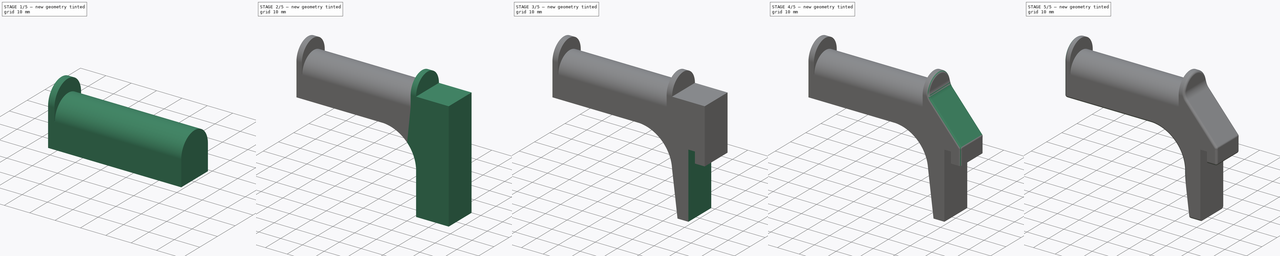
[diagram: build sequence overview — one tinted view per stage of 5, left to right]
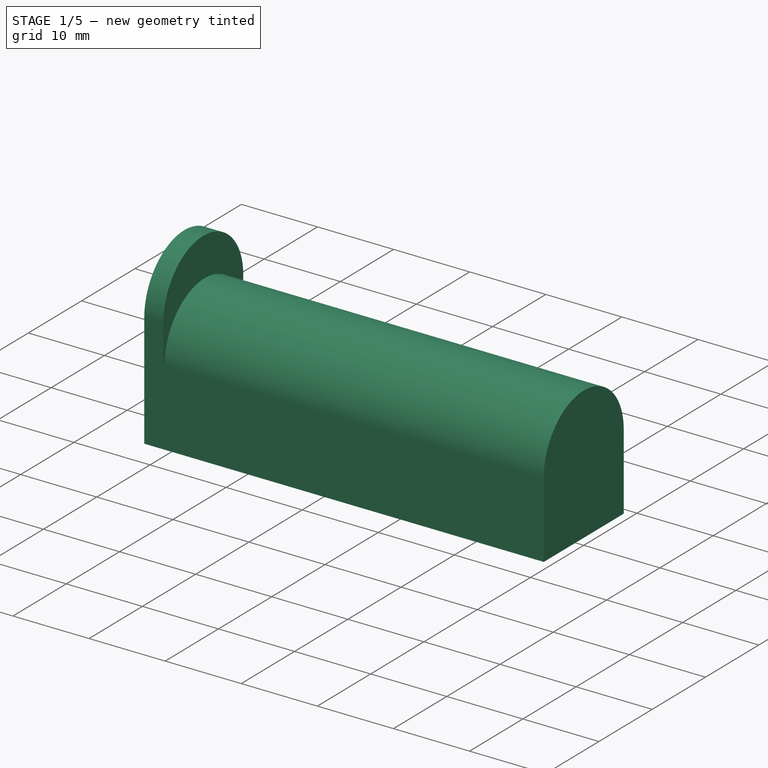
[diagram: stage 1 of 5 — iso view after this stage's code; geometry added in this stage tinted green]
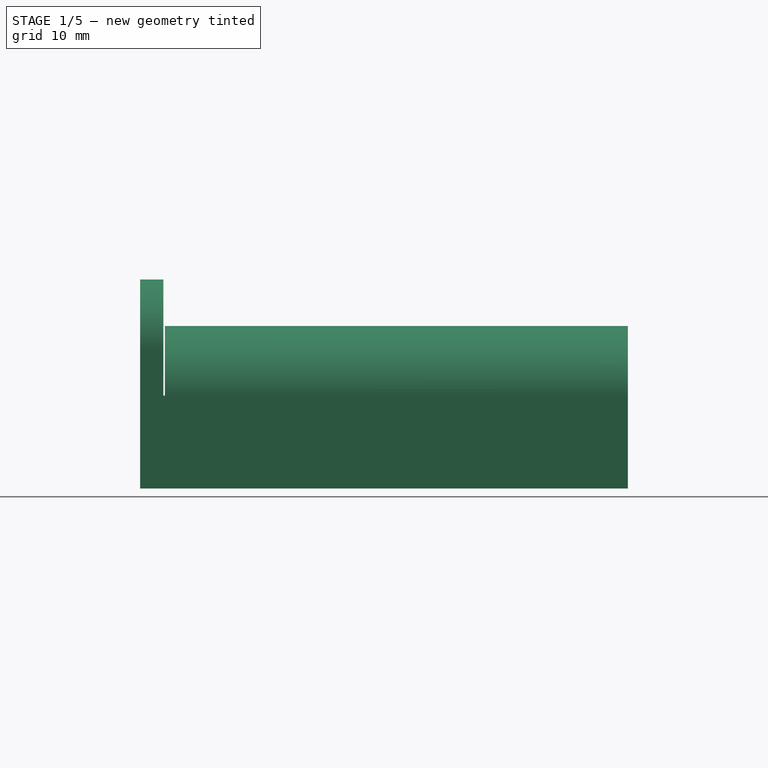
[diagram: stage 1 of 5 — front view after this stage's code; geometry added in this stage tinted green]
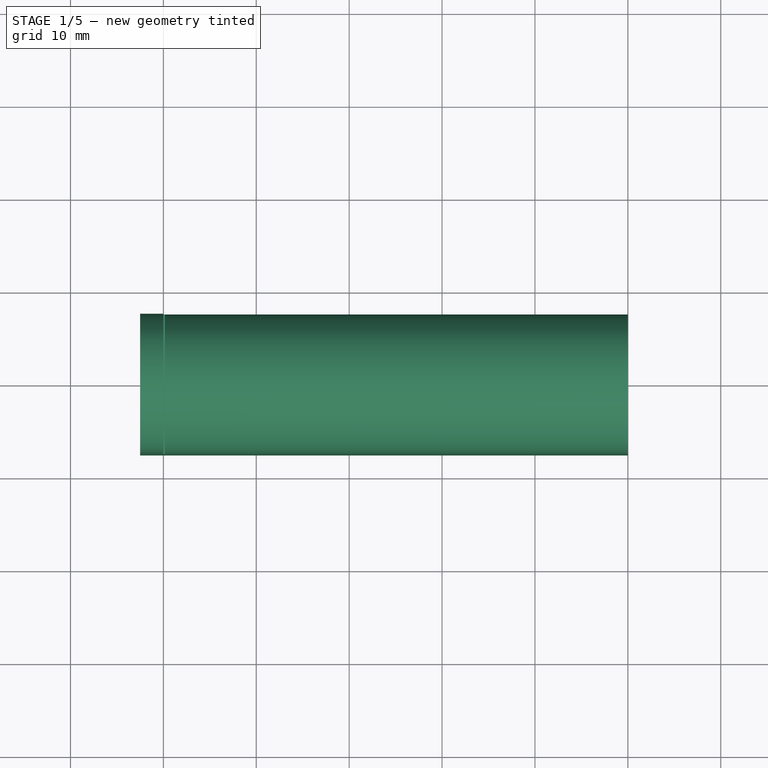
[diagram: stage 1 of 5 — top view after this stage's code; geometry added in this stage tinted green]
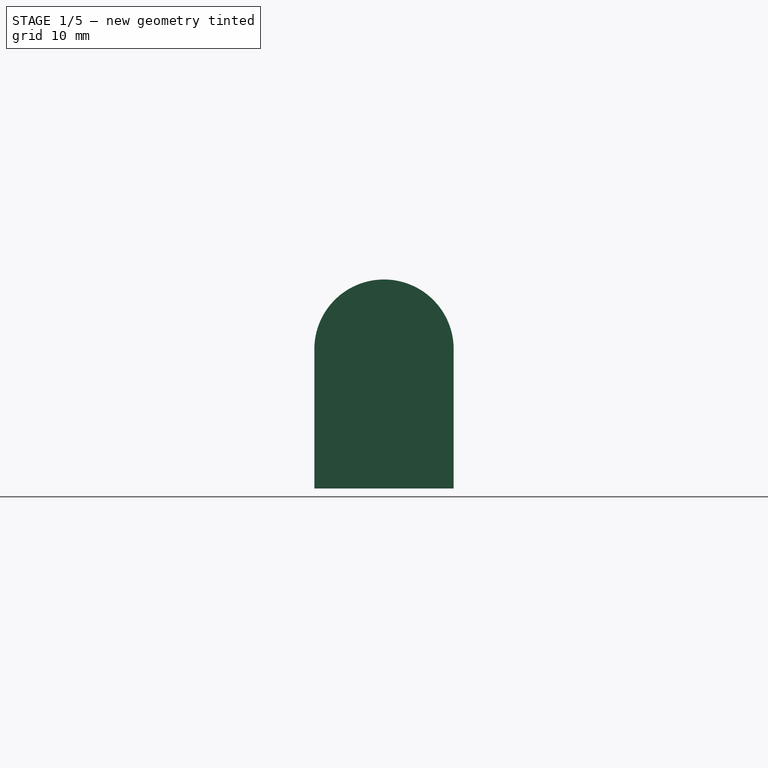
[diagram: stage 1 of 5 — right view after this stage's code; geometry added in this stage tinted green]
FCSTD DOCUMENT  (FreeCAD 0.15R4671 (Git))
Label: spool_holder
License: All rights reserved
LicenseURL: http://en.wikipedia.org/wiki/All_rights_reserved
objects: Sketcher::SketchObject×12, PartDesign::Pad×5, Part::Fillet×5, PartDesign::Pocket×4, PartDesign::Revolution×3, PartDesign::Fillet×2
note: 43 computed .brp shape members not serialized (recipe doc carries the construction recipe); baked Part::Feature solids carry a one-line shape summary decoded from their .brp

FEATURE [Sketcher::SketchObject] Sketch
  sketch-geometry (4):
    g0: LineSegment StartX=0 StartY=0 StartZ=0 EndX=-49.8359 EndY=0 EndZ=0
    g1: LineSegment StartX=-49.8359 StartY=0 StartZ=0 EndX=-49.8359 EndY=7.5 EndZ=0
    g2: LineSegment StartX=-49.8359 StartY=7.5 StartZ=0 EndX=0 EndY=7.5 EndZ=0
    g3: LineSegment StartX=0 StartY=7.5 StartZ=0 EndX=0 EndY=0 EndZ=0
  constraints (8):
    c: Coincident(g0,g1)
    c: Coincident(g1,g2)
    c: Coincident(g2,g3)
    c: Coincident(g3,g0)
    c: Horizontal(g0)
    c: Horizontal(g2)
    c: Vertical(g1)
    c: Vertical(g3)
FEATURE [PartDesign::Revolution] Revolution
  Angle = 180
  Axis = (1,0,0)
  Base = (0,0,0)
  ReferenceAxis = -> Sketch [H_Axis]
  Sketch = -> Sketch
FEATURE [Sketcher::SketchObject] Sketch001
  Placement = pos=(0,0,0) rot=(1,0,0;3.14159rad)
  Support = -> Revolution [Face4]
  sketch-geometry (4):
    g0: LineSegment StartX=0 StartY=7.5 StartZ=0 EndX=-50 EndY=7.5 EndZ=0
    g1: LineSegment StartX=-50 StartY=7.5 StartZ=0 EndX=-50 EndY=-7.5 EndZ=0
    g2: LineSegment StartX=-50 StartY=-7.5 StartZ=0 EndX=0 EndY=-7.5 EndZ=0
    g3: LineSegment StartX=0 StartY=-7.5 StartZ=0 EndX=0 EndY=7.5 EndZ=0
  constraints (9):
    c: Coincident(g0,g1)
    c: Coincident(g1,g2)
    c: Coincident(g2,g3)
    c: Coincident(g3,g0)
    c: Horizontal(g0)
    c: Horizontal(g2)
    c: Vertical(g1)
    c: Vertical(g3)
    c: PointOnObject(g0,g-2)
FEATURE [PartDesign::Pad] Pad
  Length = 10
  Length2 = 100
  Sketch = -> Sketch001
  Type = 0
FEATURE [Sketcher::SketchObject] Sketch002
  Placement = pos=(-50,0,0) rot=(0.57735,-0.57735,-0.57735;2.0944rad)
  Support = -> Pad [Face3]
  sketch-geometry (4):
    g0: LineSegment StartX=-7.5 StartY=5 StartZ=0 EndX=7.5 EndY=5 EndZ=0
    g1: LineSegment StartX=7.5 StartY=5 StartZ=0 EndX=7.5 EndY=-10 EndZ=0
    g2: LineSegment StartX=7.5 StartY=-10 StartZ=0 EndX=-7.5 EndY=-10 EndZ=0
    g3: LineSegment StartX=-7.5 StartY=-10 StartZ=0 EndX=-7.5 EndY=5 EndZ=0
  constraints (8):
    c: Coincident(g0,g1)
    c: Coincident(g1,g2)
    c: Coincident(g2,g3)
    c: Coincident(g3,g0)
    c: Horizontal(g0)
    c: Horizontal(g2)
    c: Vertical(g1)
    c: Vertical(g3)
FEATURE [PartDesign::Pad] Pad001
  Length = 2.5
  Length2 = 100
  Sketch = -> Sketch002
  Type = 0
FEATURE [Sketcher::SketchObject] Sketch003
  Placement = pos=(0,0,5) rot=(0,0,1;0rad)
  Support = -> Pad001 [Face6]
  sketch-geometry (4):
    g0: LineSegment StartX=-50 StartY=7.5 StartZ=0 EndX=-52.5 EndY=7.5 EndZ=0
    g1: LineSegment StartX=-52.5 StartY=7.5 StartZ=0 EndX=-52.5 EndY=0 EndZ=0
    g2: LineSegment StartX=-52.5 StartY=0 StartZ=0 EndX=-50 EndY=0 EndZ=0
    g3: LineSegment StartX=-50 StartY=0 StartZ=0 EndX=-50 EndY=7.5 EndZ=0
  constraints (8):
    c: Coincident(g0,g1)
    c: Coincident(g1,g2)
    c: Coincident(g2,g3)
    c: Coincident(g3,g0)
    c: Horizontal(g0)
    c: Horizontal(g2)
    c: Vertical(g1)
    c: Vertical(g3)
FEATURE [PartDesign::Revolution] Revolution001
  Angle = 180
  Axis = (1,0,0)
  Base = (0,0,5)
  ReferenceAxis = -> Sketch003 [H_Axis]
  Sketch = -> Sketch003
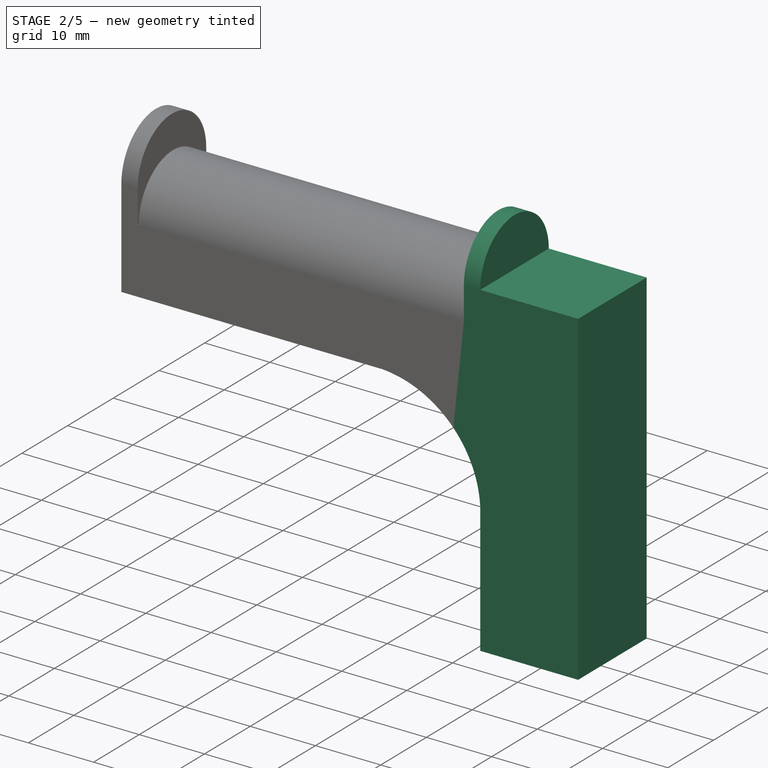
[diagram: stage 2 of 5 — iso view after this stage's code; geometry added in this stage tinted green]
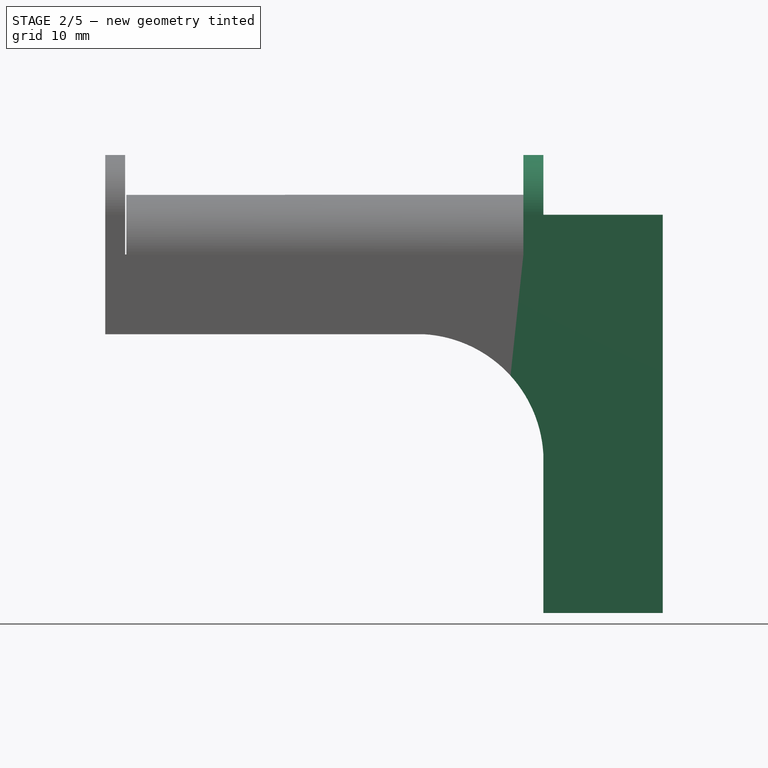
[diagram: stage 2 of 5 — front view after this stage's code; geometry added in this stage tinted green]
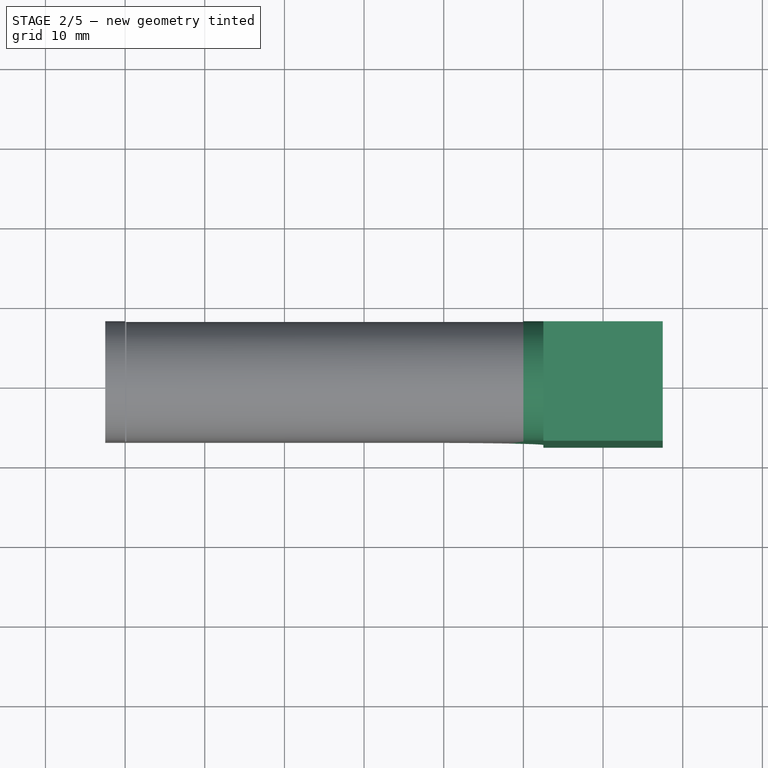
[diagram: stage 2 of 5 — top view after this stage's code; geometry added in this stage tinted green]
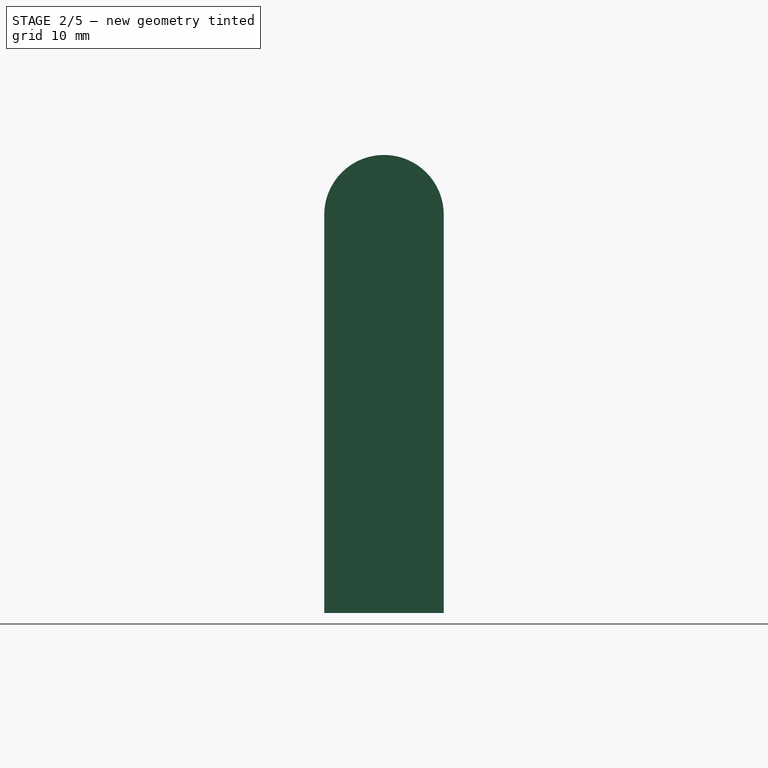
[diagram: stage 2 of 5 — right view after this stage's code; geometry added in this stage tinted green]
FEATURE [Sketcher::SketchObject] Sketch004
  Placement = pos=(0,0,0) rot=(0.57735,0.57735,0.57735;2.0944rad)
  Support = -> Revolution001 [Face1]
  sketch-geometry (4):
    g0: LineSegment StartX=-7.5 StartY=5 StartZ=0 EndX=7.5 EndY=5 EndZ=0
    g1: LineSegment StartX=7.5 StartY=5 StartZ=0 EndX=7.5 EndY=-10 EndZ=0
    g2: LineSegment StartX=7.5 StartY=-10 StartZ=0 EndX=-7.5 EndY=-10 EndZ=0
    g3: LineSegment StartX=-7.5 StartY=-10 StartZ=0 EndX=-7.5 EndY=5 EndZ=0
  constraints (8):
    c: Coincident(g0,g1)
    c: Coincident(g1,g2)
    c: Coincident(g2,g3)
    c: Coincident(g3,g0)
    c: Horizontal(g0)
    c: Horizontal(g2)
    c: Vertical(g1)
    c: Vertical(g3)
FEATURE [PartDesign::Pad] Pad002
  Length = 2.5
  Length2 = 100
  Sketch = -> Sketch004
  Type = 0
FEATURE [Sketcher::SketchObject] Sketch005
  Placement = pos=(0,0,5) rot=(0,0,1;0rad)
  Support = -> Pad002 [Face2]
  sketch-geometry (4):
    g0: LineSegment StartX=0 StartY=7.5 StartZ=0 EndX=2.5 EndY=7.5 EndZ=0
    g1: LineSegment StartX=2.5 StartY=7.5 StartZ=0 EndX=2.5 EndY=0 EndZ=0
    g2: LineSegment StartX=2.5 StartY=0 StartZ=0 EndX=0 EndY=0 EndZ=0
    g3: LineSegment StartX=0 StartY=0 StartZ=0 EndX=0 EndY=7.5 EndZ=0
  constraints (10):
    c: Coincident(g0,g1)
    c: Coincident(g1,g2)
    c: Coincident(g2,g3)
    c: Coincident(g3,g0)
    c: Horizontal(g0)
    c: Horizontal(g2)
    c: Vertical(g1)
    c: Vertical(g3)
    c: PointOnObject(g0,g-2)
    c: PointOnObject(g1,g-1)
FEATURE [PartDesign::Revolution] Revolution002
  Angle = 180
  Axis = (1,0,0)
  Base = (0,0,5)
  ReferenceAxis = -> Sketch005 [H_Axis]
  Sketch = -> Sketch005
FEATURE [Sketcher::SketchObject] Sketch006
  Placement = pos=(2.5,0,0) rot=(0.57735,0.57735,0.57735;2.0944rad)
  Support = -> Revolution002 [Face11]
  sketch-geometry (4):
    g0: LineSegment StartX=-7.5 StartY=5 StartZ=0 EndX=7.5 EndY=5 EndZ=0
    g1: LineSegment StartX=7.5 StartY=5 StartZ=0 EndX=7.5 EndY=-45 EndZ=0
    g2: LineSegment StartX=7.5 StartY=-45 StartZ=0 EndX=-7.5 EndY=-45 EndZ=0
    g3: LineSegment StartX=-7.5 StartY=-45 StartZ=0 EndX=-7.5 EndY=5 EndZ=0
  constraints (8):
    c: Coincident(g0,g1)
    c: Coincident(g1,g2)
    c: Coincident(g2,g3)
    c: Coincident(g3,g0)
    c: Horizontal(g0)
    c: Horizontal(g2)
    c: Vertical(g1)
    c: Vertical(g3)
FEATURE [PartDesign::Pad] Pad003
  Length = 15
  Length2 = 100
  Sketch = -> Sketch006
  Type = 0
FEATURE [Sketcher::SketchObject] Sketch007
  Placement = pos=(0,-7.5,0) rot=(1,0,0;1.5708rad)
  Support = -> Pad003 [Face16]
  sketch-geometry (3):
    g0: ArcOfCircle CenterX=-13.4385 CenterY=-25.9391 CenterZ=0 NormalX=0 NormalY=0 NormalZ=1 Radius=15.967 StartAngle=0.0598202 EndAngle=1.51167
    g1: LineSegment StartX=2.5 StartY=-24.9846 StartZ=0 EndX=2.5 EndY=-10 EndZ=0
    g2: LineSegment StartX=2.5 StartY=-10 StartZ=0 EndX=-12.495 EndY=-10 EndZ=0
  constraints (5):
    c: Vertical(g1)
    c: Coincident(g1,g2)
    c: Horizontal(g2)
    c: Coincident(g0,g1)
    c: Coincident(g0,g2)
FEATURE [PartDesign::Pad] Pad004
  Length = 15
  Length2 = 100
  Reversed = true
  Sketch = -> Sketch007
  Type = 0
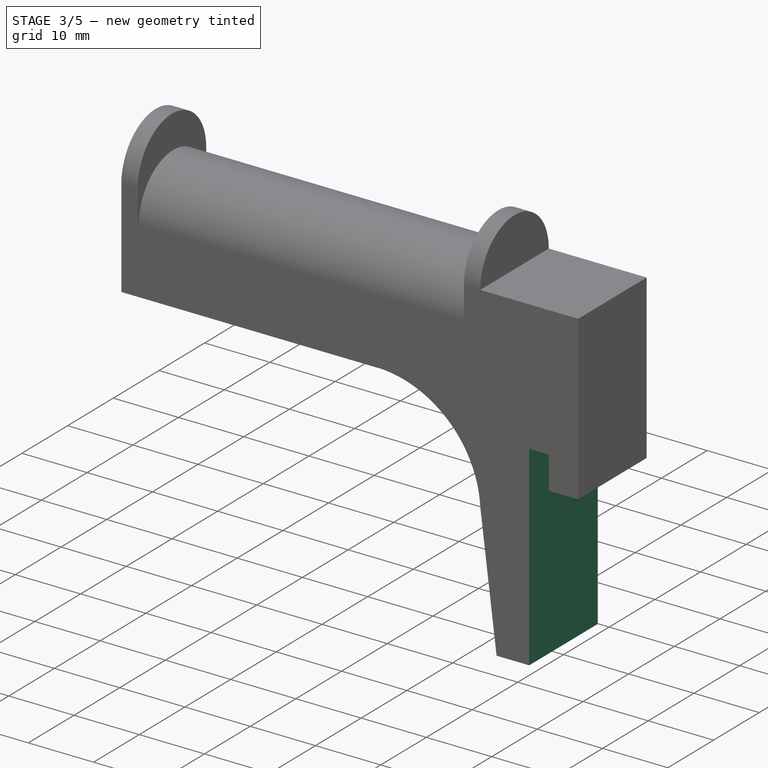
[diagram: stage 3 of 5 — iso view after this stage's code; geometry added in this stage tinted green]
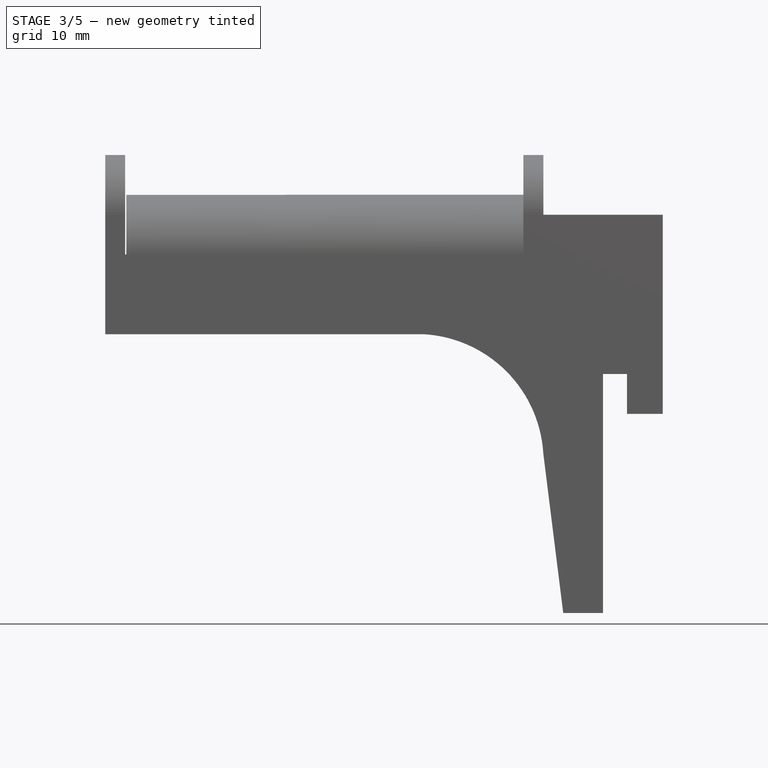
[diagram: stage 3 of 5 — front view after this stage's code; geometry added in this stage tinted green]
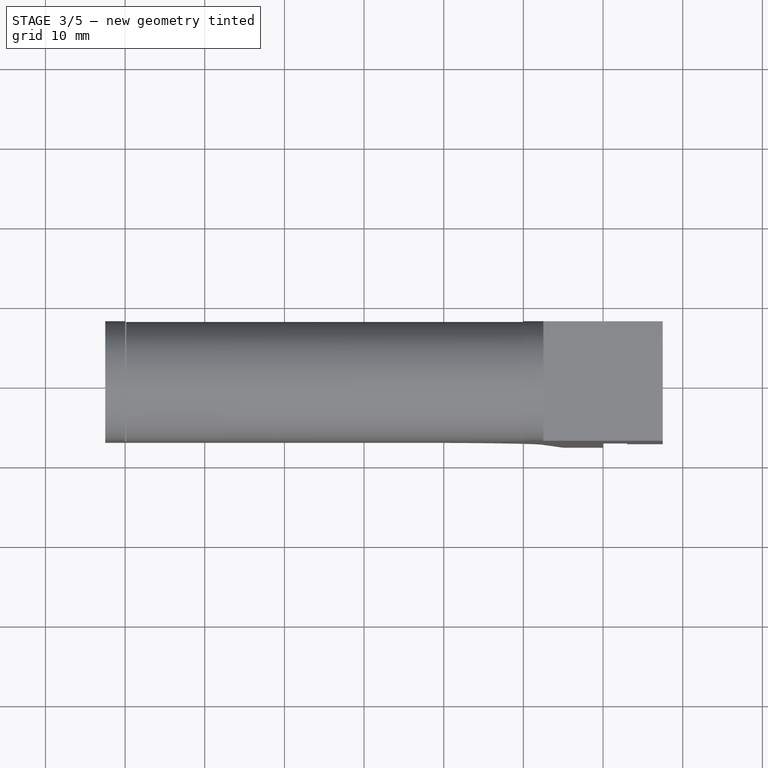
[diagram: stage 3 of 5 — top view after this stage's code; geometry added in this stage tinted green]
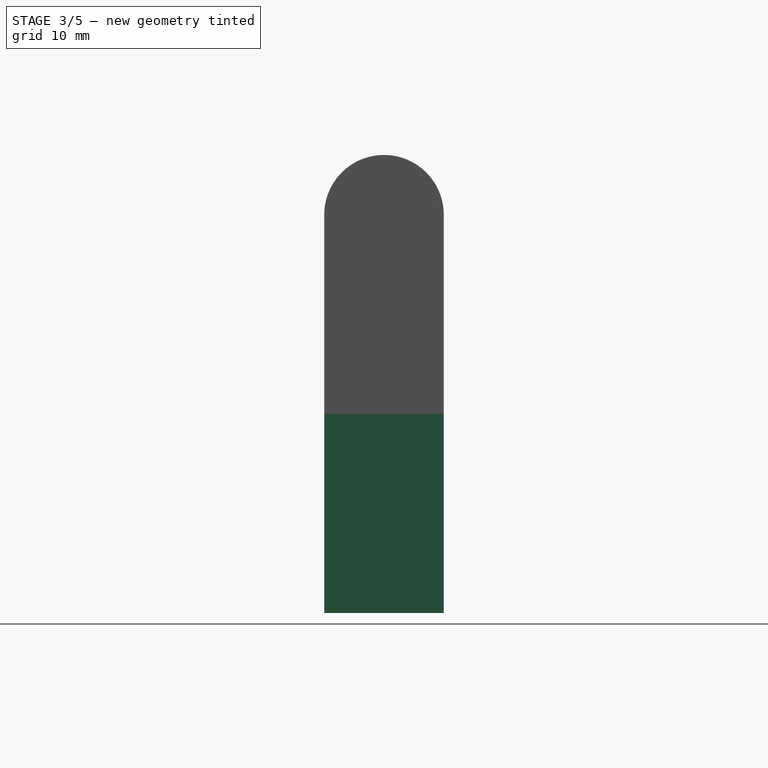
[diagram: stage 3 of 5 — right view after this stage's code; geometry added in this stage tinted green]
FEATURE [Sketcher::SketchObject] Sketch008
  Placement = pos=(0,-7.5,0) rot=(1,0,0;1.5708rad)
  Support = -> Pad004 [Face17]
  sketch-geometry (4):
    g0: LineSegment StartX=10 StartY=-45 StartZ=0 EndX=17.5 EndY=-45 EndZ=0
    g1: LineSegment StartX=17.5 StartY=-45 StartZ=0 EndX=17.5 EndY=-20 EndZ=0
    g2: LineSegment StartX=17.5 StartY=-20 StartZ=0 EndX=10 EndY=-20 EndZ=0
    g3: LineSegment StartX=10 StartY=-20 StartZ=0 EndX=10 EndY=-45 EndZ=0
  constraints (8):
    c: Coincident(g0,g1)
    c: Coincident(g1,g2)
    c: Coincident(g2,g3)
    c: Coincident(g3,g0)
    c: Horizontal(g0)
    c: Horizontal(g2)
    c: Vertical(g1)
    c: Vertical(g3)
FEATURE [PartDesign::Pocket] Pocket
  Length = 15
  Sketch = -> Sketch008
  Type = 0
FEATURE [Sketcher::SketchObject] Sketch009
  Placement = pos=(0,-7.5,0) rot=(1,0,0;1.5708rad)
  Support = -> Pocket [Face5]
  sketch-geometry (4):
    g0: LineSegment StartX=2.5 StartY=-25 StartZ=0 EndX=5 EndY=-45 EndZ=0
    g1: LineSegment StartX=5 StartY=-45 StartZ=0 EndX=0 EndY=-45 EndZ=0
    g2: LineSegment StartX=0 StartY=-45 StartZ=0 EndX=0 EndY=-25 EndZ=0
    g3: LineSegment StartX=0 StartY=-25 StartZ=0 EndX=2.5 EndY=-25 EndZ=0
  constraints (8):
    c: Coincident(g0,g1)
    c: Horizontal(g1)
    c: Coincident(g1,g2)
    c: PointOnObject(g2,g-2)
    c: Vertical(g2)
    c: Coincident(g2,g3)
    c: Coincident(g3,g0)
    c: Horizontal(g3)
FEATURE [PartDesign::Pocket] Pocket001
  Length = 15
  Sketch = -> Sketch009
  Type = 0
FEATURE [Sketcher::SketchObject] Sketch010
  Placement = pos=(0,-7.5,0) rot=(1,0,0;1.5708rad)
  Support = -> Pocket001 [Face5]
  sketch-geometry (4):
    g0: LineSegment StartX=10 StartY=-20 StartZ=0 EndX=13 EndY=-20 EndZ=0
    g1: LineSegment StartX=13 StartY=-20 StartZ=0 EndX=13 EndY=-15 EndZ=0
    g2: LineSegment StartX=13 StartY=-15 StartZ=0 EndX=10 EndY=-15 EndZ=0
    g3: LineSegment StartX=10 StartY=-15 StartZ=0 EndX=10 EndY=-20 EndZ=0
  constraints (8):
    c: Coincident(g0,g1)
    c: Coincident(g1,g2)
    c: Coincident(g2,g3)
    c: Coincident(g3,g0)
    c: Horizontal(g0)
    c: Horizontal(g2)
    c: Vertical(g1)
    c: Vertical(g3)
FEATURE [PartDesign::Pocket] Pocket002
  Length = 15
  Sketch = -> Sketch010
  Type = 0
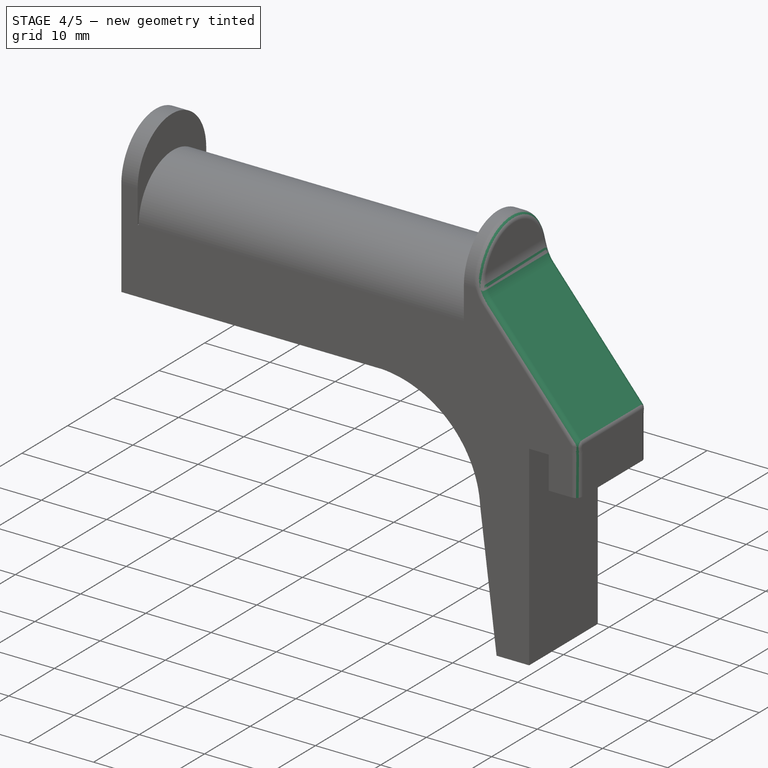
[diagram: stage 4 of 5 — iso view after this stage's code; geometry added in this stage tinted green]
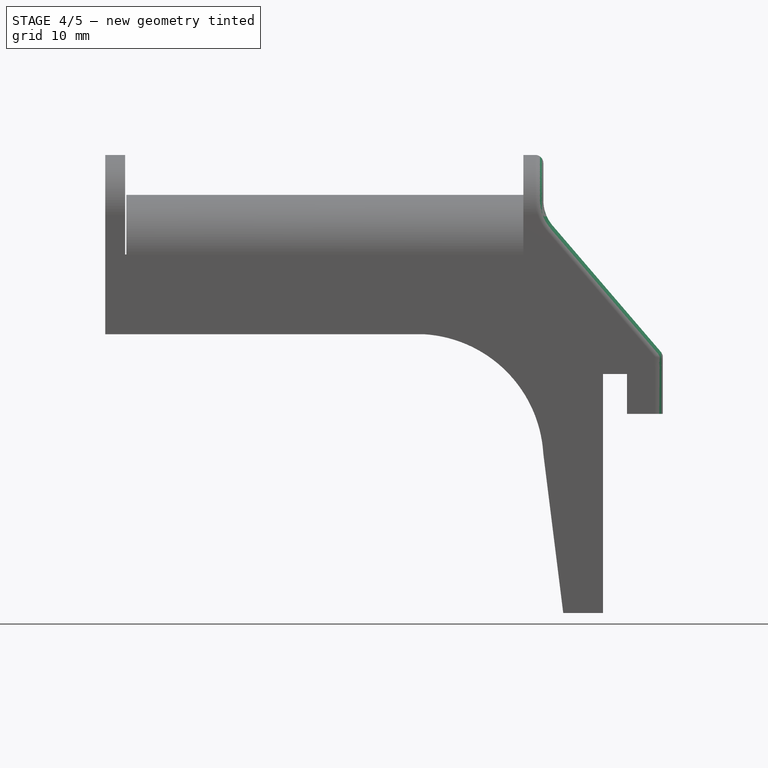
[diagram: stage 4 of 5 — front view after this stage's code; geometry added in this stage tinted green]
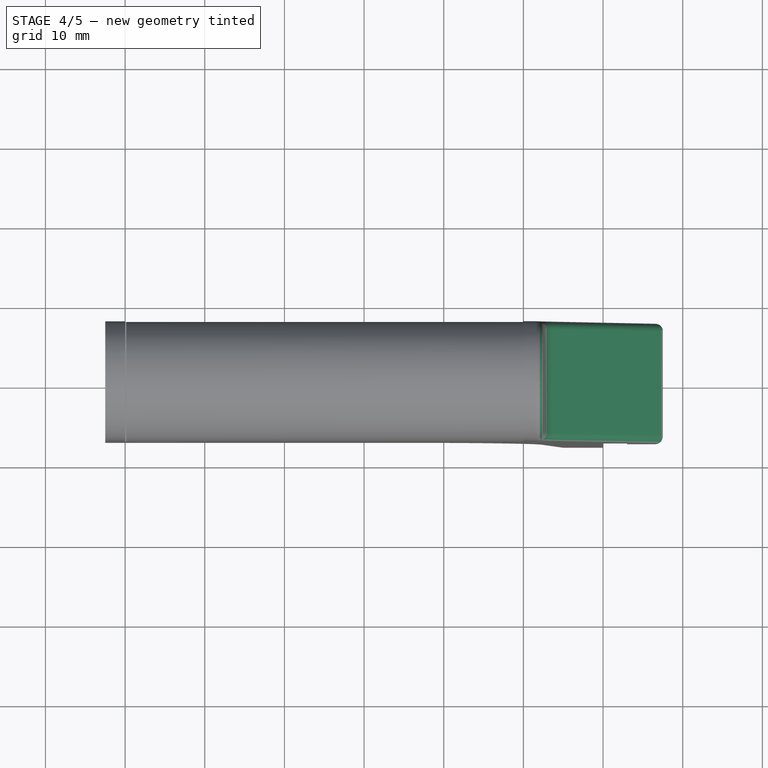
[diagram: stage 4 of 5 — top view after this stage's code; geometry added in this stage tinted green]
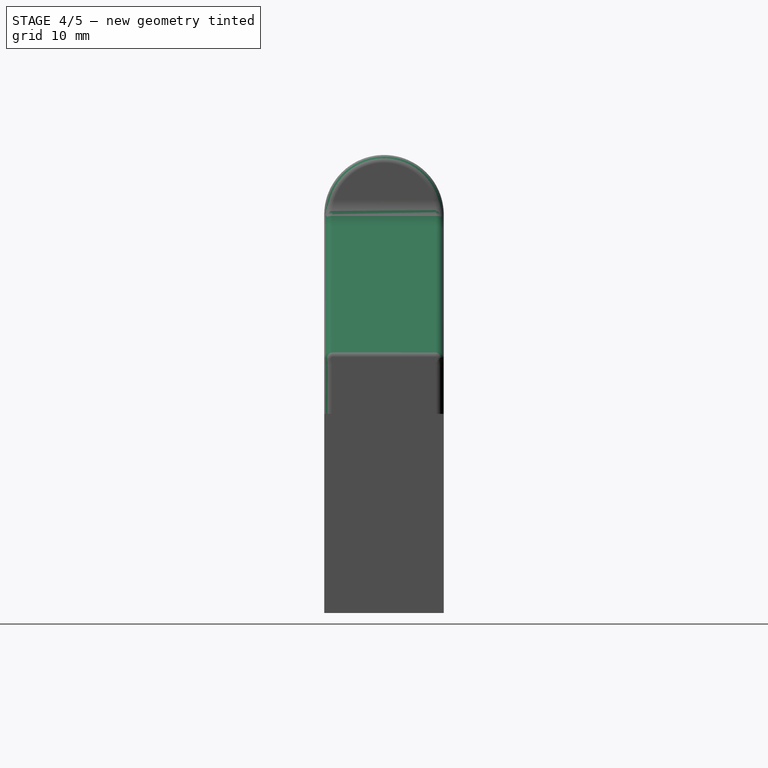
[diagram: stage 4 of 5 — right view after this stage's code; geometry added in this stage tinted green]
FEATURE [Sketcher::SketchObject] Sketch011
  Placement = pos=(0,-7.5,0) rot=(1,0,0;1.5708rad)
  Support = -> Pocket002 [Face5]
  sketch-geometry (3):
    g0: LineSegment StartX=3 StartY=1.25221 StartZ=0 EndX=17.5 EndY=-12.5 EndZ=0
    g1: LineSegment StartX=17.5 StartY=-12.5 StartZ=0 EndX=17.5 EndY=1.25221 EndZ=0
    g2: LineSegment StartX=17.5 StartY=1.25221 StartZ=0 EndX=3 EndY=1.25221 EndZ=0
  constraints (5):
    c: Coincident(g1,g0)
    c: Vertical(g1)
    c: Coincident(g2,g0)
    c: Horizontal(g2)
    c: Coincident(g1,g2)
FEATURE [PartDesign::Pocket] Pocket003
  Length = 15
  Sketch = -> Sketch011
  Type = 0
FEATURE [PartDesign::Fillet] Fillet
  Base = -> Pocket003 [Edge5]
  Radius = 5
FEATURE [PartDesign::Fillet] Fillet001
  Base = -> Fillet [Edge50]
  Radius = 1
FEATURE [Part::Fillet] Fillet002
  Base = -> Fillet001
  Edges = 5 edges r=1: [Edge4,Edge12,Edge13,Edge16,Edge17]
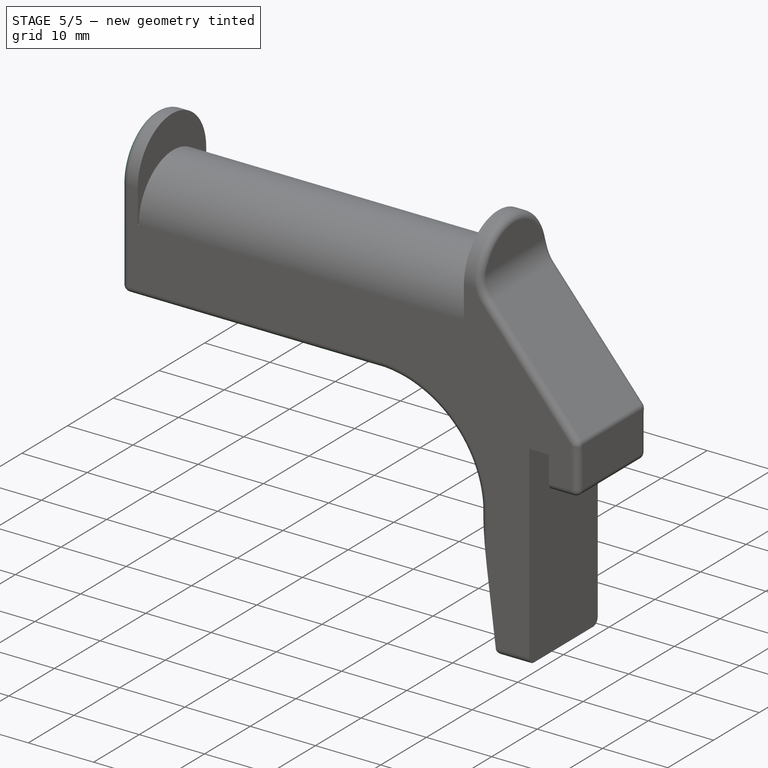
[diagram: stage 5 of 5 — iso view after this stage's code; geometry added in this stage tinted green]
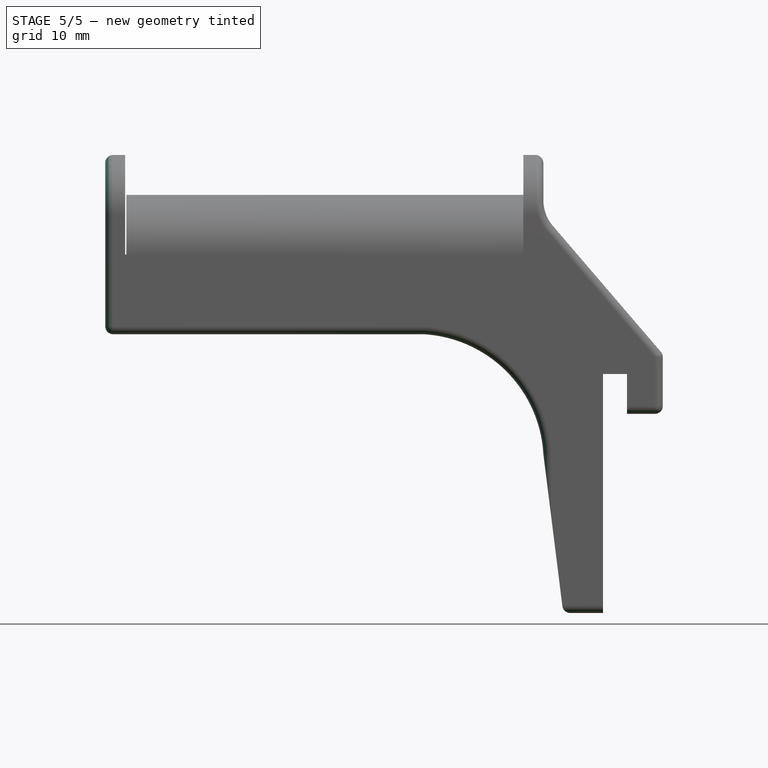
[diagram: stage 5 of 5 — front view after this stage's code; geometry added in this stage tinted green]
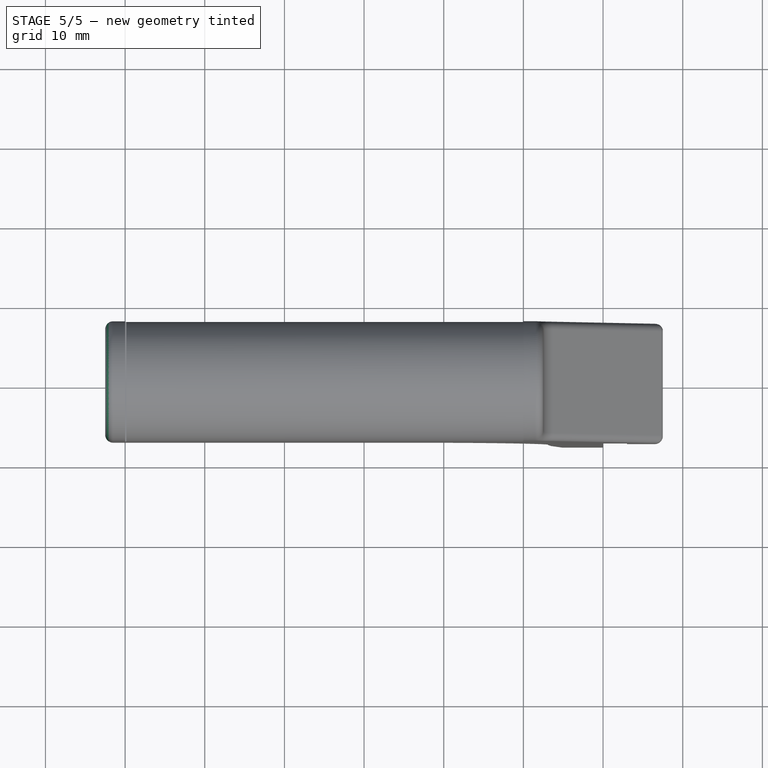
[diagram: stage 5 of 5 — top view after this stage's code; geometry added in this stage tinted green]
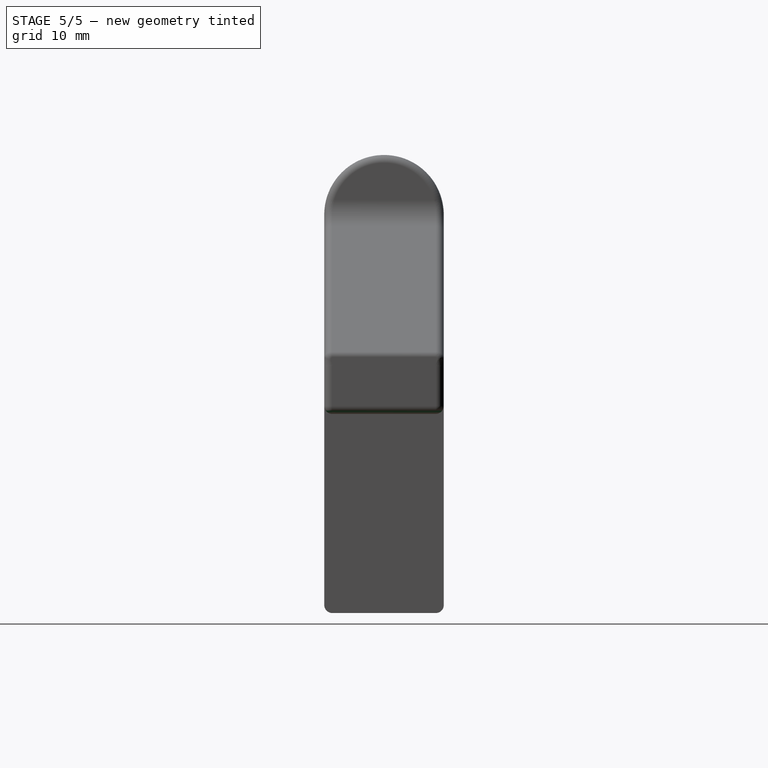
[diagram: stage 5 of 5 — right view after this stage's code; geometry added in this stage tinted green]
FEATURE [Part::Fillet] Fillet003
  Base = -> Fillet002
  Edges = 1 edges r=1: [Edge43]
FEATURE [Part::Fillet] Fillet004
  Base = -> Fillet003
  Edges = 1 edges r=1: [Edge21]
FEATURE [Part::Fillet] Fillet005
  Base = -> Fillet004
  Edges = 3 edges r=1: [Edge14,Edge55,Edge60]
FEATURE [Part::Fillet] Fillet006
  Base = -> Fillet005
  Edges = 1 edges r=1: [Edge41]
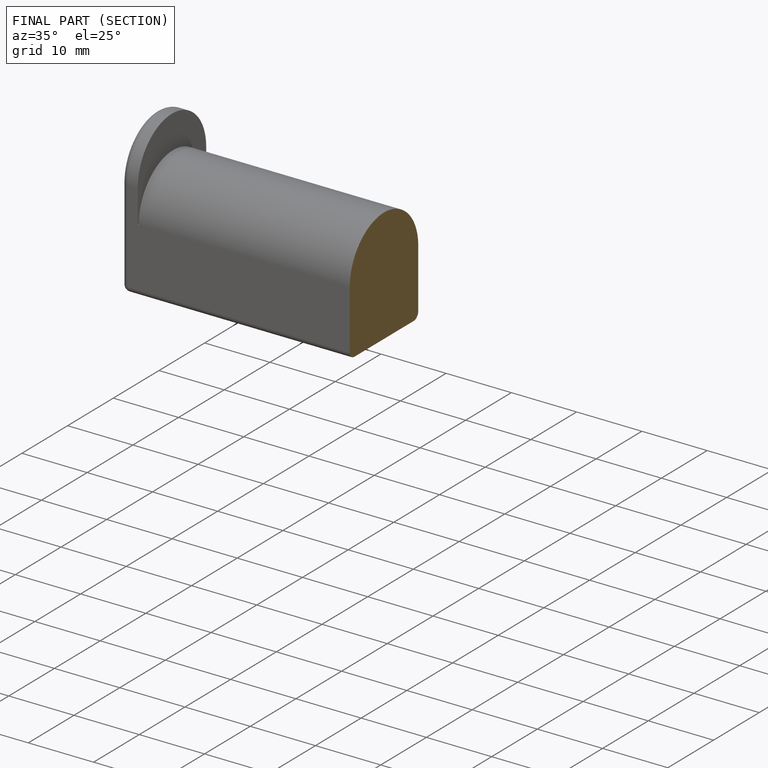
[diagram: finished part — half-section view (interior)]
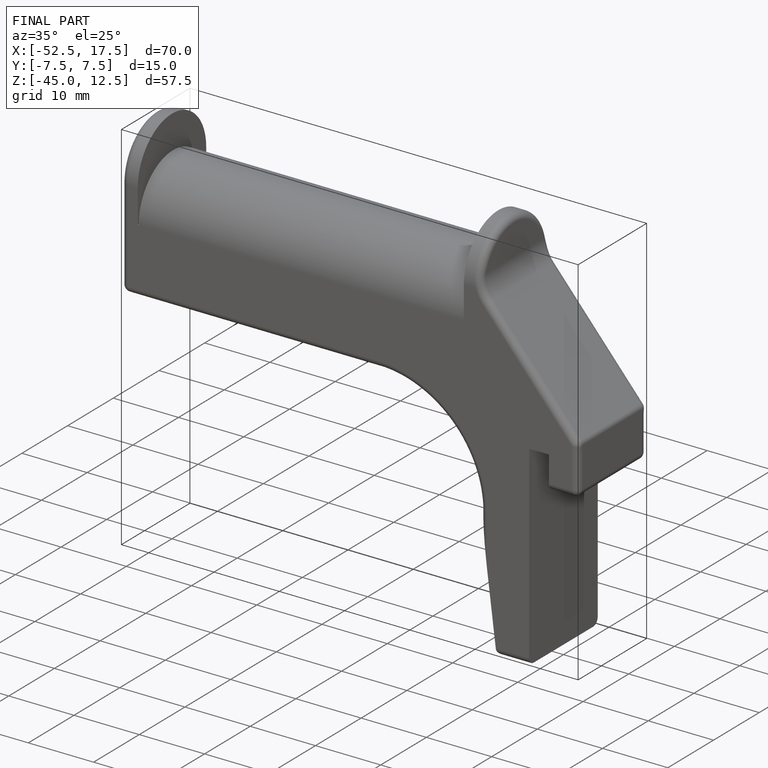
[diagram: finished part — iso view with bounding-box wireframe]
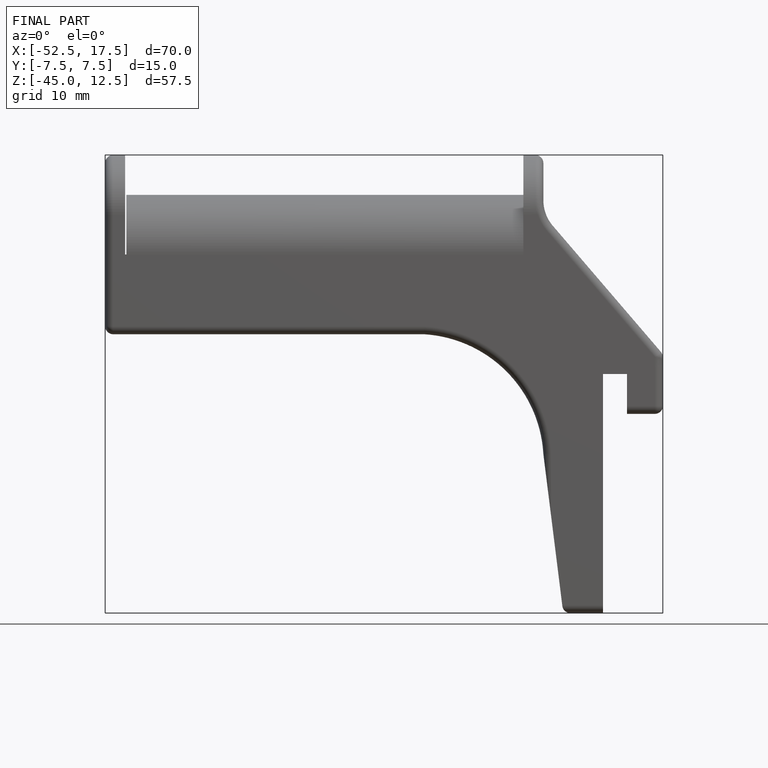
[diagram: finished part — front view with bounding-box wireframe]
